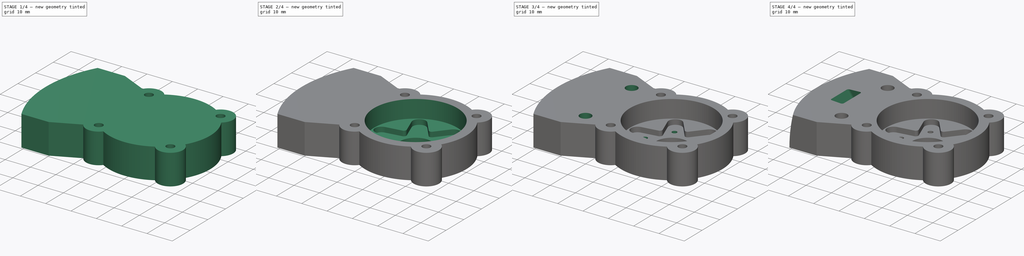
[diagram: build sequence overview — one tinted view per stage of 4, left to right]
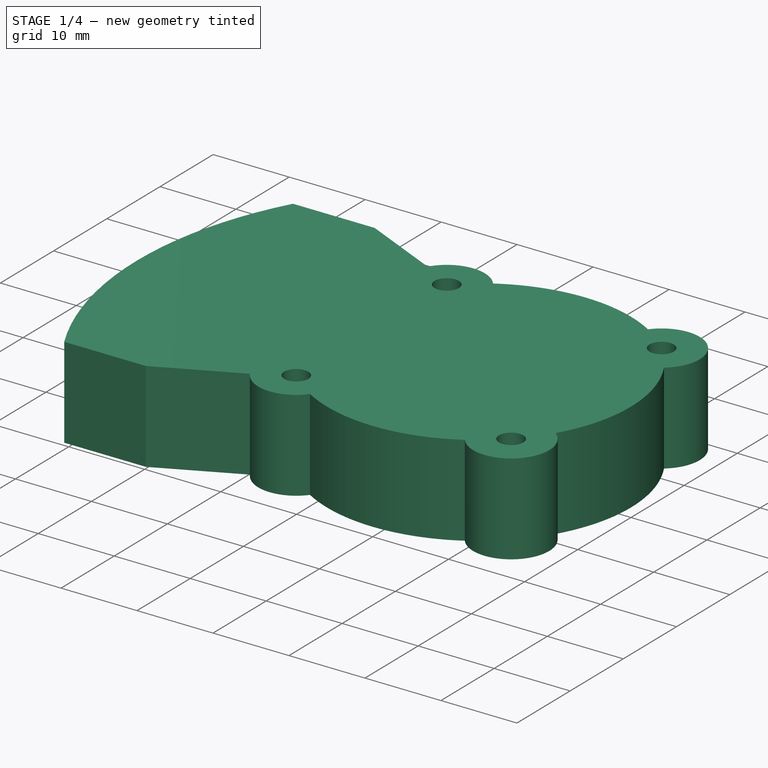
[diagram: stage 1 of 4 — iso view after this stage's code; geometry added in this stage tinted green]
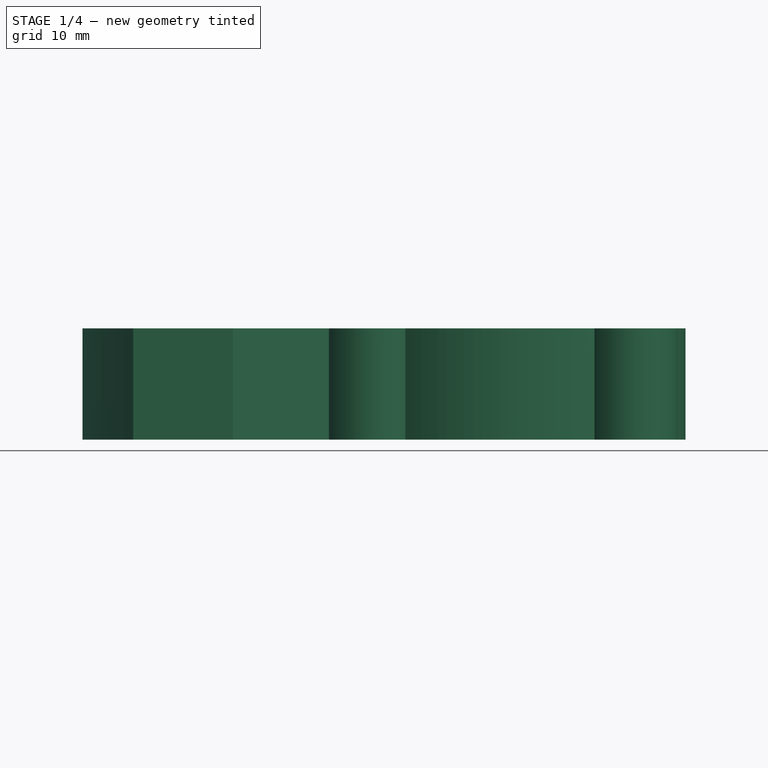
[diagram: stage 1 of 4 — front view after this stage's code; geometry added in this stage tinted green]
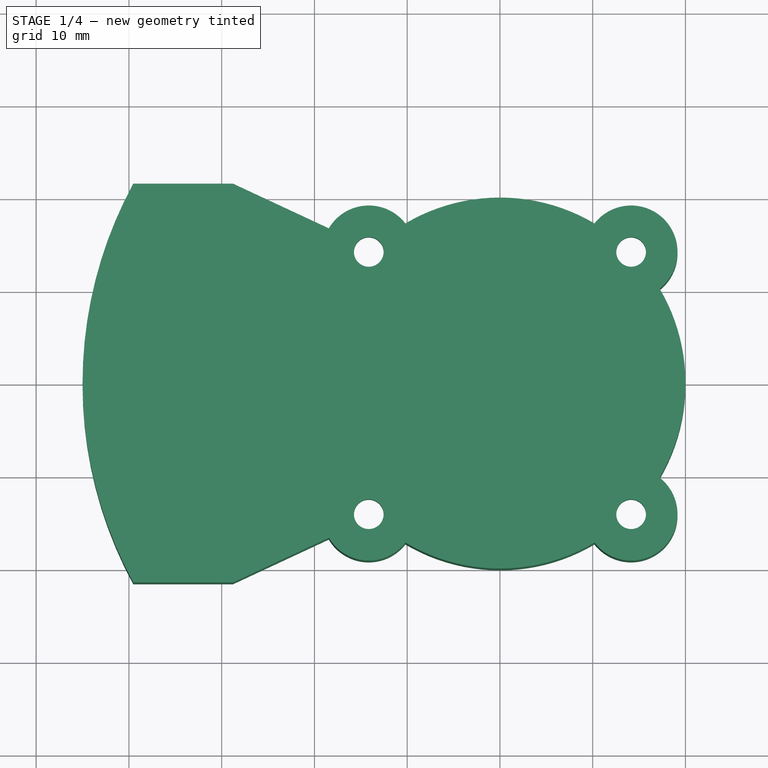
[diagram: stage 1 of 4 — top view after this stage's code; geometry added in this stage tinted green]
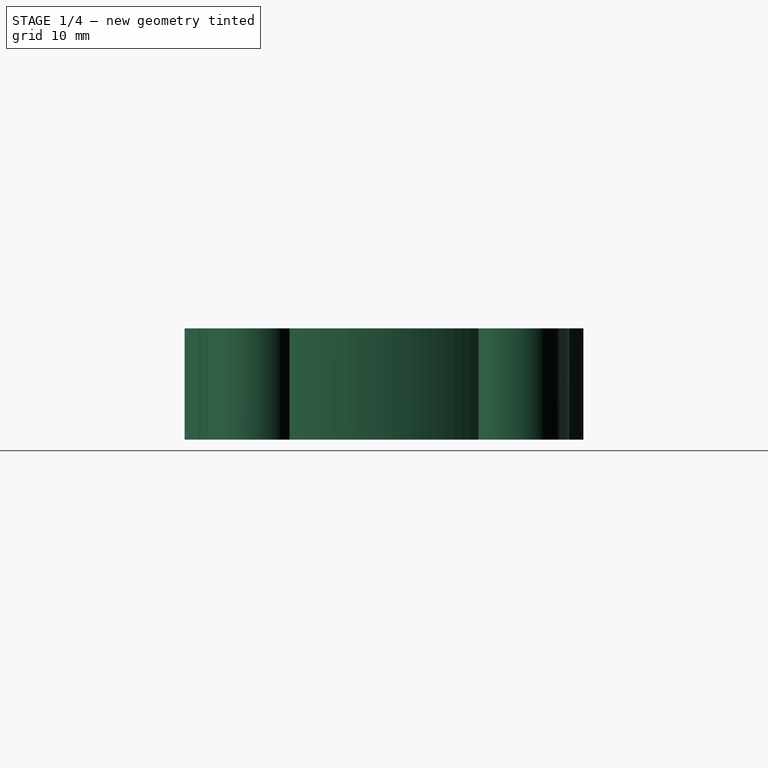
[diagram: stage 1 of 4 — right view after this stage's code; geometry added in this stage tinted green]
FCSTD DOCUMENT  (FreeCAD 1.0R38806 (Git))
Label: Shoulder_Joint_Servohorn_Cap
License: All rights reserved
LicenseURL: https://en.wikipedia.org/wiki/All_rights_reserved
objects: Sketcher::SketchObject×13, PartDesign::Pocket×9, PartDesign::Pad×1, PartDesign::SubtractiveLoft×1, PartDesign::Groove×1, PartDesign::Chamfer×1, PartDesign::Body×1
note: 66 computed .brp shape members not serialized (recipe doc carries the construction recipe); baked Part::Feature solids carry a one-line shape summary decoded from their .brp

FEATURE [Sketcher::SketchObject] Sketch  label="sk_base"
  ArcFitTolerance = 1e-06
  AttachmentSupport = -> [XY_Plane]
  FullyConstrained = true
  MakeInternals = false
  MapMode = 5
  sketch-geometry (17):
    g0: ArcOfCircle CenterX=0 CenterY=0 CenterZ=0 NormalX=0 NormalY=0 NormalZ=1 AngleXU=0 Radius=20 StartAngle=1.03605 EndAngle=2.10554
    g1: Circle [constr] CenterX=0 CenterY=0 CenterZ=0 NormalX=0 NormalY=0 NormalZ=1 AngleXU=0 Radius=20
    g2: LineSegment [constr] StartX=-14.1421 StartY=14.1421 StartZ=0 EndX=-14.1421 EndY=-14.1421 EndZ=0
    g3: LineSegment [constr] StartX=-14.1421 StartY=-14.1421 StartZ=0 EndX=14.1421 EndY=-14.1421 EndZ=0
    g4: LineSegment [constr] StartX=14.1421 StartY=-14.1421 StartZ=0 EndX=14.1421 EndY=14.1421 EndZ=0
    g5: LineSegment [constr] StartX=14.1421 StartY=14.1421 StartZ=0 EndX=-14.1421 EndY=14.1421 EndZ=0
    g6: ArcOfCircle CenterX=14.1421 CenterY=14.1421 CenterZ=0 NormalX=0 NormalY=0 NormalZ=1 AngleXU=0 Radius=5 StartAngle=5.37246 EndAngle=8.76471
    g7: ArcOfCircle CenterX=14.1421 CenterY=-14.1421 CenterZ=0 NormalX=0 NormalY=0 NormalZ=1 AngleXU=0 Radius=5 StartAngle=3.80166 EndAngle=7.19391
    g8: ArcOfCircle CenterX=-14.1421 CenterY=-14.1421 CenterZ=0 NormalX=0 NormalY=0 NormalZ=1 AngleXU=0 Radius=5 StartAngle=3.67439 EndAngle=5.62311
    g9: ArcOfCircle CenterX=-14.1421 CenterY=14.1421 CenterZ=0 NormalX=0 NormalY=0 NormalZ=1 AngleXU=0 Radius=5 StartAngle=0.66007 EndAngle=2.6088
    g10: ArcOfCircle CenterX=0 CenterY=2.08e-14 CenterZ=0 NormalX=0 NormalY=0 NormalZ=1 AngleXU=0 Radius=20 StartAngle=4.17765 EndAngle=5.24713
    g11: ArcOfCircle CenterX=0 CenterY=2.08e-14 CenterZ=0 NormalX=0 NormalY=0 NormalZ=1 AngleXU=0 Radius=20 StartAngle=5.74844 EndAngle=6.81793
    g12: LineSegment StartX=-28.7816 StartY=21.5 StartZ=0 EndX=-39.5316 EndY=21.5 EndZ=0
    g13: ArcOfCircle CenterX=0 CenterY=2.08e-14 CenterZ=0 NormalX=0 NormalY=0 NormalZ=1 AngleXU=0 Radius=45 StartAngle=2.64347 EndAngle=3.63972
    g14: LineSegment StartX=-39.5316 StartY=-21.5 StartZ=0 EndX=-28.7816 EndY=-21.5 EndZ=0
    g15: LineSegment StartX=-28.7816 StartY=-21.5 StartZ=0 EndX=-18.4491 EndY=-16.6819 EndZ=0
    g16: LineSegment StartX=-28.7816 StartY=21.5 StartZ=0 EndX=-18.4491 EndY=16.6819 EndZ=0
  constraints (51):
    c: Coincident(g0,g-1)
    c: Coincident(g1,g0)
    c: Equal(g1,g0)
    c: Coincident(g2,g3)
    c: Coincident(g3,g4)
    c: Coincident(g4,g5)
    c: Coincident(g5,g2)
    c: Vertical(g2)
    c: Vertical(g4)
    c: Horizontal(g3)
    c: Horizontal(g5)
    c: PointOnObject(g2,g10)
    c: PointOnObject(g3,g10)
    c: Equal(g5,g4)
    c: Coincident(g6,g4)
    c: Coincident(g7,g3)
    c: Coincident(g8,g2)
    c: Coincident(g9,g2)
    c: Coincident(g6,g11)
    c: Coincident(g6,g0)
    c: Equal(g6,g7)
    c: Equal(g6,g9)
    c: Equal(g6,g8)
    c: Radius(g6) = 5  'rad_ear'
    c: Coincident(g0,g9)
    c: Equal(g10,g11)
    c: Coincident(g10,g11)
    c: Radius(g11) = 20  'rad_base'
    c: PointOnObject(g4,g1)
    c: Horizontal(g12)
    c: Horizontal(g14)
    c: Equal(g14,g12)
    c: DistanceX(g12,g12) = 10.75  'length_brace'
    c: Coincident(g15,g14)
    c: Coincident(g16,g12)
    c: Distance(g14,g12) = 43  'width_brace'
    c: Coincident(g12,g13)
    c: Coincident(g14,g13)
    c: Radius(g13) = 45  'rad_brace'
    c: Angle(g12,g16) = 2.70526  'angle_brace'
    c: Coincident(g8,g15)
    c: Coincident(g7,g11)
    c: Coincident(g7,g10)
    c: Coincident(g8,g10)
    c: Coincident(g10,g13)
    c: Coincident(g9,g16)
    c: Equal(g1,g11)
    c: PointOnObject(g10,g-2)
    c: Equal(g15,g16)
    c: Vertical(g12,g13)
    c: Vertical(g9,g8)
FEATURE [PartDesign::Pad] Pad  label="pad_base"
  Direction = (0,0,1)
  Length = 12
  Length2 = 10
  Profile = -> Sketch
  ReferenceAxis = -> Sketch [N_Axis]
  Refine = true
  Suppressed = false
  Type = 0
FEATURE [Sketcher::SketchObject] Sketch001  label="sk_screwholes_mount"
  ArcFitTolerance = 1e-06
  AttachmentSupport = -> [XY_Plane]
  ExternalGeometry = -> [Sketch]
  FullyConstrained = true
  MakeInternals = false
  MapMode = 5
  sketch-geometry (4):
    g0: Circle CenterX=-14.1421 CenterY=14.1421 CenterZ=0 NormalX=0 NormalY=0 NormalZ=1 AngleXU=0 Radius=1.6
    g1: Circle CenterX=14.1421 CenterY=14.1421 CenterZ=0 NormalX=0 NormalY=0 NormalZ=1 AngleXU=0 Radius=1.6
    g2: Circle CenterX=14.1421 CenterY=-14.1421 CenterZ=0 NormalX=0 NormalY=0 NormalZ=1 AngleXU=0 Radius=1.6
    g3: Circle CenterX=-14.1421 CenterY=-14.1421 CenterZ=0 NormalX=0 NormalY=0 NormalZ=1 AngleXU=0 Radius=1.6
  constraints (8):
    c: Coincident(g0,g-3)
    c: Coincident(g1,g-4)
    c: Coincident(g2,g-5)
    c: Coincident(g3,g-6)
    c: Equal(g1,g0)
    c: Equal(g1,g3)
    c: Equal(g1,g2)
    c: Radius(g1) = 1.6  'rad_screwhole'
FEATURE [PartDesign::Pocket] Pocket  label="pocket_screwholes_mount"
  BaseFeature = -> Pad
  Direction = (0,0,-1)
  Length = 5
  Length2 = 5
  Profile = -> Sketch001
  ReferenceAxis = -> Sketch001 [N_Axis]
  Refine = true
  Reversed = true
  Suppressed = false
  Type = 1
FEATURE [Sketcher::SketchObject] Sketch002  label="sk_accesshole"
  ArcFitTolerance = 1e-06
  AttachmentOffset = pos=(0,0,12) rot=(0,0,1;0rad)
  AttachmentSupport = -> [XY_Plane]
  FullyConstrained = true
  MakeInternals = false
  MapMode = 5
  Placement = pos=(0,0,12) rot=(0,0,1;0rad)
  expr: .AttachmentOffset.Base.z = <<pad_base>>.Length
  sketch-geometry (1):
    g0: Circle CenterX=0 CenterY=0 CenterZ=0 NormalX=0 NormalY=0 NormalZ=1 AngleXU=0 Radius=16.5
  constraints (2):
    c: Coincident(g0,g-1)
    c: Radius(g0) = 16.5  'rad_hole'
FEATURE [Sketcher::SketchObject] Sketch003  label="sk_servohole"
  ArcFitTolerance = 1e-06
  AttachmentSupport = -> [XY_Plane]
  FullyConstrained = true
  MakeInternals = false
  MapMode = 5
  sketch-geometry (1):
    g0: Circle CenterX=0 CenterY=0 CenterZ=0 NormalX=0 NormalY=0 NormalZ=1 AngleXU=0 Radius=6.15
  constraints (2):
    c: Coincident(g0,g-1)
    c: Radius(g0) = 6.15  'rad_servo'
FEATURE [Sketcher::SketchObject] Sketch004  label="sk_servohorn"
  ArcFitTolerance = 1e-06
  AttachmentOffset = pos=(0,0,5) rot=(0,0,1;0rad)
  AttachmentSupport = -> [XY_Plane]
  FullyConstrained = true
  MakeInternals = false
  MapMode = 5
  Placement = pos=(0,0,5) rot=(0,0,1;0rad)
  expr: .AttachmentOffset.Base.z = <<pad_base>>.Length - <<pocket_accesshole>>.Length
  sketch-geometry (44):
    g0: LineSegment [constr] StartX=6.49519 StartY=-3.75 StartZ=0 EndX=6.49519 EndY=3.75 EndZ=0
    g1: LineSegment [constr] StartX=6.49519 StartY=3.75 StartZ=0 EndX=-9e-16 EndY=7.5 EndZ=0
    g2: LineSegment [constr] StartX=-9e-16 StartY=7.5 StartZ=0 EndX=-6.49519 EndY=3.75 EndZ=0
    g3: LineSegment [constr] StartX=-6.49519 StartY=3.75 StartZ=0 EndX=-6.49519 EndY=-3.75 EndZ=0
    g4: LineSegment [constr] StartX=-6.49519 StartY=-3.75 StartZ=0 EndX=0 EndY=-7.5 EndZ=0
    g5: LineSegment [constr] StartX=0 StartY=-7.5 StartZ=0 EndX=6.49519 EndY=-3.75 EndZ=0
    g6: Circle [constr] CenterX=0 CenterY=0 CenterZ=0 NormalX=0 NormalY=0 NormalZ=1 AngleXU=0 Radius=7.5
    g7: LineSegment [constr] StartX=6.75 StartY=11.6913 StartZ=0 EndX=-6.75 EndY=11.6913 EndZ=0
    g8: LineSegment [constr] StartX=-6.75 StartY=11.6913 StartZ=0 EndX=-13.5 EndY=0 EndZ=0
    g9: LineSegment [constr] StartX=-13.5 StartY=0 StartZ=0 EndX=-6.75 EndY=-11.6913 EndZ=0
    g10: LineSegment [constr] StartX=-6.75 StartY=-11.6913 StartZ=0 EndX=6.75 EndY=-11.6913 EndZ=0
    g11: LineSegment [constr] StartX=6.75 StartY=-11.6913 StartZ=0 EndX=13.5 EndY=0 EndZ=0
    g12: LineSegment [constr] StartX=13.5 StartY=0 StartZ=0 EndX=6.75 EndY=11.6913 EndZ=0
    g13: Circle [constr] CenterX=0 CenterY=0 CenterZ=0 NormalX=0 NormalY=0 NormalZ=1 AngleXU=0 Radius=13.5
    g14: ArcOfCircle CenterX=6.75 CenterY=11.6913 CenterZ=0 NormalX=0 NormalY=0 NormalZ=1 AngleXU=0 Radius=2.6 StartAngle=5.91774 EndAngle=8.74303
    g15: ArcOfCircle CenterX=13.5 CenterY=0 CenterZ=0 NormalX=0 NormalY=0 NormalZ=1 AngleXU=0 Radius=2.6 StartAngle=4.87054 EndAngle=7.69583
    g16: ArcOfCircle CenterX=6.75 CenterY=-11.6913 CenterZ=0 NormalX=0 NormalY=0 NormalZ=1 AngleXU=0 Radius=2.6 StartAngle=3.82334 EndAngle=6.64863
    g17: ArcOfCircle CenterX=-6.75 CenterY=-11.6913 CenterZ=0 NormalX=0 NormalY=0 NormalZ=1 AngleXU=0 Radius=2.6 StartAngle=2.77614 EndAngle=5.60144
    g18: ArcOfCircle CenterX=-13.5 CenterY=0 CenterZ=0 NormalX=0 NormalY=0 NormalZ=1 AngleXU=0 Radius=2.6 StartAngle=1.72895 EndAngle=4.55424
    g19: ArcOfCircle CenterX=-6.75 CenterY=11.6913 CenterZ=0 NormalX=0 NormalY=0 NormalZ=1 AngleXU=0 Radius=2.6 StartAngle=0.681749 EndAngle=3.50704
    g20: LineSegment StartX=4.73117 StartY=13.3297 StartZ=0 EndX=0.776472 EndY=8.45677 EndZ=0
    g21: LineSegment StartX=-0.776472 StartY=8.45677 StartZ=0 EndX=-4.73117 EndY=13.3297 EndZ=0
    g22: LineSegment StartX=-9.17831 StartY=10.7622 StartZ=0 EndX=-6.93554 EndY=4.90083 EndZ=0
    g23: LineSegment StartX=-7.71201 StartY=3.55594 StartZ=0 EndX=-13.9095 EndY=2.56755 EndZ=0
    g24: LineSegment StartX=-13.9095 StartY=-2.56755 StartZ=0 EndX=-7.71201 EndY=-3.55594 EndZ=0
    g25: LineSegment StartX=-6.93554 StartY=-4.90083 StartZ=0 EndX=-9.17831 EndY=-10.7622 EndZ=0
    g26: LineSegment StartX=-0.776472 StartY=-8.45677 StartZ=0 EndX=-4.73117 EndY=-13.3297 EndZ=0
    g27: LineSegment StartX=0.776472 StartY=-8.45677 StartZ=0 EndX=4.73117 EndY=-13.3297 EndZ=0
    g28: LineSegment StartX=9.17831 StartY=-10.7622 StartZ=0 EndX=6.93554 EndY=-4.90083 EndZ=0
    g29: LineSegment StartX=7.71201 StartY=-3.55594 StartZ=0 EndX=13.9095 EndY=-2.56755 EndZ=0
    g30: LineSegment StartX=13.9095 StartY=2.56755 StartZ=0 EndX=7.71201 EndY=3.55594 EndZ=0
    g31: LineSegment StartX=6.93554 StartY=4.90083 StartZ=0 EndX=9.17831 EndY=10.7622 EndZ=0
    g32: ArcOfCircle CenterX=-7.8695 CenterY=-4.54346 CenterZ=0 NormalX=0 NormalY=0 NormalZ=1 AngleXU=0 Radius=1 StartAngle=5.91774 EndAngle=7.69583
    g33: GeomPoint [constr] X=-6.49519 Y=-3.75 Z=0
    g34: ArcOfCircle CenterX=-1e-16 CenterY=-9.08692 CenterZ=0 NormalX=0 NormalY=0 NormalZ=1 AngleXU=0 Radius=1 StartAngle=0.681749 EndAngle=2.45984
    g35: GeomPoint [constr] X=0 Y=-7.5 Z=0
    g36: ArcOfCircle CenterX=7.8695 CenterY=-4.54346 CenterZ=0 NormalX=0 NormalY=0 NormalZ=1 AngleXU=0 Radius=1 StartAngle=1.72895 EndAngle=3.50704
    g37: GeomPoint [constr] X=6.49519 Y=-3.75 Z=0
    g38: ArcOfCircle CenterX=7.8695 CenterY=4.54346 CenterZ=0 NormalX=0 NormalY=0 NormalZ=1 AngleXU=0 Radius=1 StartAngle=2.77614 EndAngle=4.55424
    g39: GeomPoint [constr] X=6.49519 Y=3.75 Z=0
    g40: ArcOfCircle CenterX=2.2e-15 CenterY=9.08692 CenterZ=0 NormalX=0 NormalY=0 NormalZ=1 AngleXU=0 Radius=1 StartAngle=3.82334 EndAngle=5.60144
    g41: GeomPoint [constr] X=-9e-16 Y=7.5 Z=0
    g42: ArcOfCircle CenterX=-7.8695 CenterY=4.54346 CenterZ=0 NormalX=0 NormalY=0 NormalZ=1 AngleXU=0 Radius=1 StartAngle=4.87054 EndAngle=6.64863
    g43: GeomPoint [constr] X=-6.49519 Y=3.75 Z=0
  constraints (92):
    c: Coincident(g0,g1)
    c: Coincident(g1,g2)
    c: Coincident(g2,g3)
    c: Coincident(g3,g4)
    c: Coincident(g4,g5)
    c: Coincident(g5,g0)
    c: Equal(g0, g1-g5) x5
    c: PointOnObject(g0,g6)
    c: PointOnObject(g1,g6)
    c: PointOnObject(g2,g6)
    c: PointOnObject(g3,g6)
    c: PointOnObject(g4,g6)
    c: Coincident(g6,g-1)
    c: Coincident(g7,g8)
    c: Coincident(g8,g9)
    c: Coincident(g9,g10)
    c: Coincident(g10,g11)
    c: Coincident(g11,g12)
    c: Coincident(g12,g7)
    c: Equal(g7, g8-g12) x5
    c: PointOnObject(g7,g13)
    c: PointOnObject(g8,g13)
    c: PointOnObject(g9,g13)
    c: PointOnObject(g10,g13)
    c: PointOnObject(g11,g13)
    c: Coincident(g13,g6)
    c: Radius(g6) = 7.5  'rad_inner'
    c: Radius(g13) = 13.5  'rad_outer'
    c: Coincident(g14,g7)
    c: Coincident(g15,g11)
    c: Coincident(g16,g10)
    c: Coincident(g17,g9)
    c: Coincident(g18,g8)
    c: Coincident(g19,g7)
    c: Equal(g14,g19)
    c: Equal(g14,g18)
    c: Equal(g14,g17)
    c: Equal(g14,g16)
    c: Equal(g14,g15)
    c: Radius(g14) = 2.6  'rad_horntip'
    c: Coincident(g41,g1)
    c: Coincident(g43,g2)
    c: Coincident(g33,g3)
    c: Coincident(g35,g4)
    c: Coincident(g37,g0)
    c: Coincident(g39,g0)
    c: Tangent(g14,g20) = -1.5708
    c: Tangent(g14,g31) = -1.5708
    c: Tangent(g15,g30) = -1.5708
    c: Tangent(g15,g29) = -1.5708
    c: Tangent(g16,g28) = -1.5708
    c: Tangent(g16,g27) = -1.5708
    c: Tangent(g17,g26) = 1.5708
    c: Tangent(g17,g25) = -1.5708
    c: Tangent(g18,g24) = -1.5708
    c: Tangent(g18,g23) = -1.5708
    c: Tangent(g19,g22) = -1.5708
    c: Tangent(g19,g21) = -1.5708
    c: PointOnObject(g33,g24)
    c: PointOnObject(g33,g25)
    c: Tangent(g24,g32) = 1.5708
    c: Tangent(g25,g32) = 1.5708
    c: PointOnObject(g35,g26)
    c: PointOnObject(g35,g27)
    c: Tangent(g26,g34) = -1.5708
    c: Tangent(g27,g34) = 1.5708
    c: PointOnObject(g37,g28)
    c: PointOnObject(g37,g29)
    c: Tangent(g28,g36) = 1.5708
    c: Tangent(g29,g36) = 1.5708
    c: PointOnObject(g39,g30)
    c: PointOnObject(g39,g31)
    c: Tangent(g30,g38) = 1.5708
    c: Tangent(g31,g38) = 1.5708
    c: PointOnObject(g41,g20)
    c: PointOnObject(g41,g21)
    c: Tangent(g20,g40) = 1.5708
    c: Tangent(g21,g40) = 1.5708
    c: PointOnObject(g43,g22)
    c: PointOnObject(g43,g23)
    c: Tangent(g22,g42) = 1.5708
    c: Tangent(g23,g42) = 1.5708
    c: Equal(g38,g40)
    c: Equal(g38,g42)
    c: Equal(g38,g32)
    c: Equal(g38,g34)
    c: Equal(g38,g36)
    c: Radius(g38) = 1  'rad_fillet'
    c: PointOnObject(g7,g13)
    c: PointOnObject(g11,g-1)
    c: PointOnObject(g0,g6)
    c: PointOnObject(g4,g-2)
FEATURE [Sketcher::SketchObject] Sketch005  label="sk_screwhole_servohorn"
  ArcFitTolerance = 1e-06
  AttachmentSupport = -> [XY_Plane]
  FullyConstrained = true
  MakeInternals = false
  MapMode = 5
  sketch-geometry (13):
    g0: LineSegment [constr] StartX=5.25 StartY=9.09327 StartZ=0 EndX=-5.25 EndY=9.09327 EndZ=0
    g1: LineSegment [constr] StartX=-5.25 StartY=9.09327 StartZ=0 EndX=-10.5 EndY=0 EndZ=0
    g2: LineSegment [constr] StartX=-10.5 StartY=7e-16 StartZ=0 EndX=-5.25 EndY=-9.09327 EndZ=0
    g3: LineSegment [constr] StartX=-5.25 StartY=-9.09327 StartZ=0 EndX=5.25 EndY=-9.09327 EndZ=0
    g4: LineSegment [constr] StartX=5.25 StartY=-9.09327 StartZ=0 EndX=10.5 EndY=0 EndZ=0
    g5: LineSegment [constr] StartX=10.5 StartY=0 StartZ=0 EndX=5.25 EndY=9.09327 EndZ=0
    g6: Circle [constr] CenterX=0 CenterY=0 CenterZ=0 NormalX=0 NormalY=0 NormalZ=1 AngleXU=0 Radius=10.5
    g7: Circle CenterX=5.25 CenterY=9.09327 CenterZ=0 NormalX=0 NormalY=0 NormalZ=1 AngleXU=0 Radius=0.95
    g8: Circle CenterX=10.5 CenterY=0 CenterZ=0 NormalX=0 NormalY=0 NormalZ=1 AngleXU=0 Radius=0.95
    g9: Circle CenterX=-5.25 CenterY=9.09327 CenterZ=0 NormalX=0 NormalY=0 NormalZ=1 AngleXU=0 Radius=0.95
    g10: Circle CenterX=-10.5 CenterY=7e-16 CenterZ=0 NormalX=0 NormalY=0 NormalZ=1 AngleXU=0 Radius=0.95
    g11: Circle CenterX=-5.25 CenterY=-9.09327 CenterZ=0 NormalX=0 NormalY=0 NormalZ=1 AngleXU=0 Radius=0.95
    g12: Circle CenterX=5.25 CenterY=-9.09327 CenterZ=0 NormalX=0 NormalY=0 NormalZ=1 AngleXU=0 Radius=0.95
  constraints (28):
    c: Coincident(g0,g1)
    c: Coincident(g1,g2)
    c: Coincident(g2,g3)
    c: Coincident(g3,g4)
    c: Coincident(g4,g5)
    c: Coincident(g5,g0)
    c: Equal(g0, g1-g5) x5
    c: PointOnObject(g0,g6)
    c: PointOnObject(g1,g6)
    c: PointOnObject(g2,g6)
    c: PointOnObject(g3,g6)
    c: PointOnObject(g4,g6)
    c: Coincident(g6,g-1)
    c: Radius(g6) = 10.5  'rad_helper'
    c: Coincident(g7,g0)
    c: Coincident(g8,g4)
    c: Coincident(g9,g0)
    c: Coincident(g10,g1)
    c: Coincident(g11,g2)
    c: Coincident(g12,g3)
    c: Equal(g7,g9)
    c: Equal(g7,g10)
    c: Equal(g11,g7)
    c: Equal(g7,g12)
    c: Equal(g8,g7)
    c: Radius(g7) = 0.95  'rad_screwhole'
    c: PointOnObject(g0,g6)
    c: PointOnObject(g4,g-1)
FEATURE [Sketcher::SketchObject] Sketch006  label="sk_screwheads_mount"
  ArcFitTolerance = 1e-06
  AttachmentSupport = -> [XY_Plane]
  ExternalGeometry = -> [Sketch001]
  FullyConstrained = true
  MakeInternals = false
  MapMode = 5
  sketch-geometry (4):
    g0: Circle CenterX=-14.1421 CenterY=14.1421 CenterZ=0 NormalX=0 NormalY=0 NormalZ=1 AngleXU=0 Radius=2.85
    g1: Circle CenterX=14.1421 CenterY=14.1421 CenterZ=0 NormalX=0 NormalY=0 NormalZ=1 AngleXU=0 Radius=2.85
    g2: Circle CenterX=14.1421 CenterY=-14.1421 CenterZ=0 NormalX=0 NormalY=0 NormalZ=1 AngleXU=0 Radius=2.85
    g3: Circle CenterX=-14.1421 CenterY=-14.1421 CenterZ=0 NormalX=0 NormalY=0 NormalZ=1 AngleXU=0 Radius=2.85
  constraints (8):
    c: Coincident(g0,g-3)
    c: Coincident(g1,g-4)
    c: Coincident(g2,g-5)
    c: Coincident(g3,g-6)
    c: Equal(g1,g0)
    c: Equal(g1,g3)
    c: Equal(g1,g2)
    c: Radius(g1) = 2.85  'rad_screwhead'
FEATURE [PartDesign::Pocket] Pocket005  label="pocket_screwheads_mount"
  BaseFeature = -> Pocket
  Direction = (0,0,-1)
  Length = 8
  Length2 = 5
  Profile = -> Sketch006
  ReferenceAxis = -> Sketch006 [N_Axis]
  Refine = true
  Reversed = true
  Suppressed = false
  Type = 0
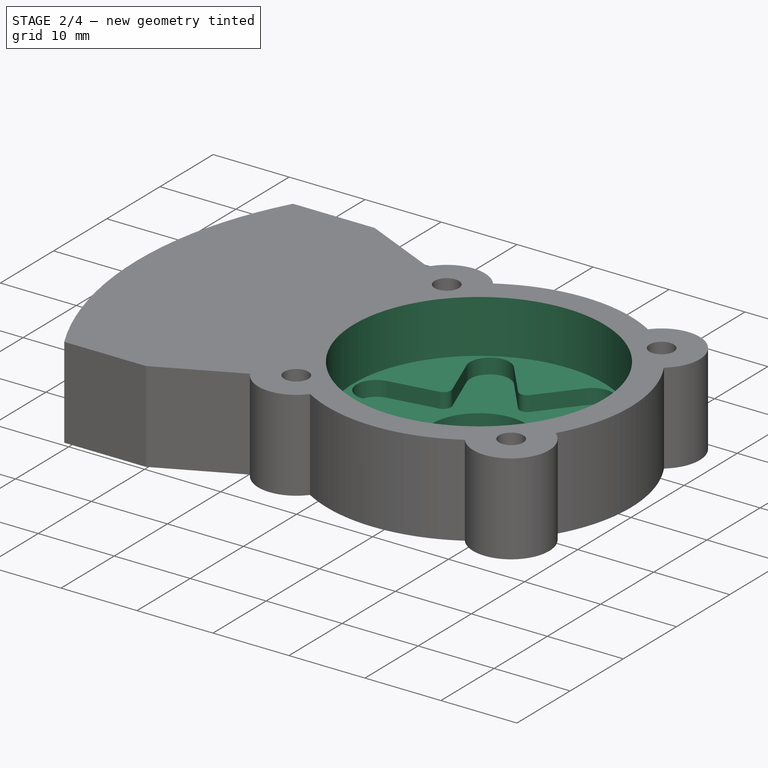
[diagram: stage 2 of 4 — iso view after this stage's code; geometry added in this stage tinted green]
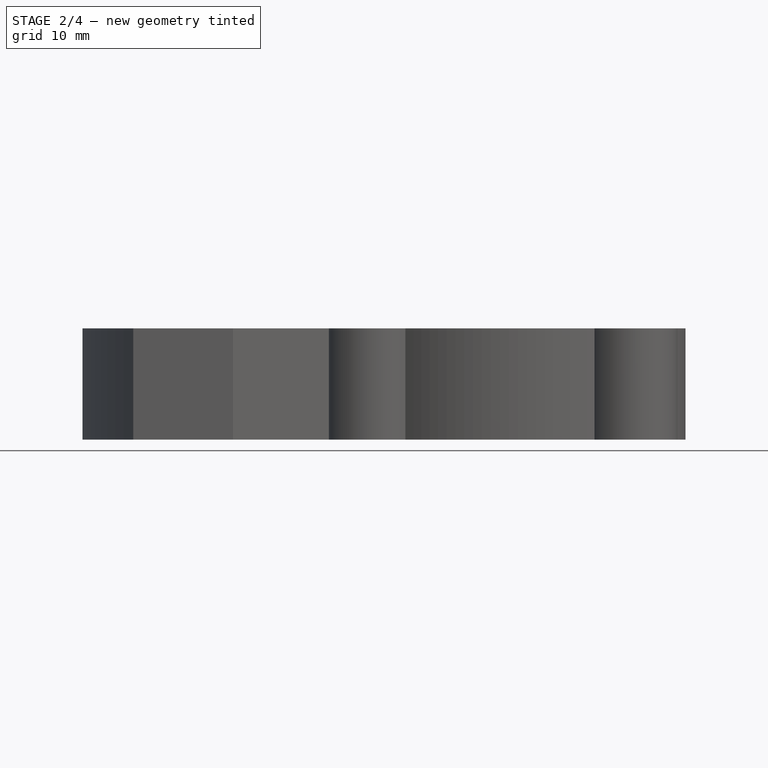
[diagram: stage 2 of 4 — front view after this stage's code; geometry added in this stage tinted green]
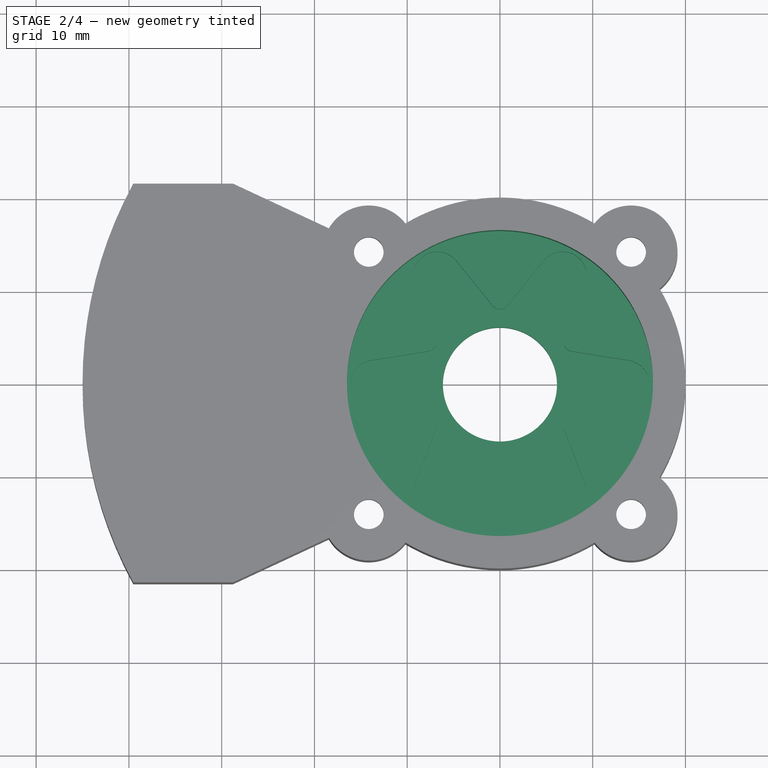
[diagram: stage 2 of 4 — top view after this stage's code; geometry added in this stage tinted green]
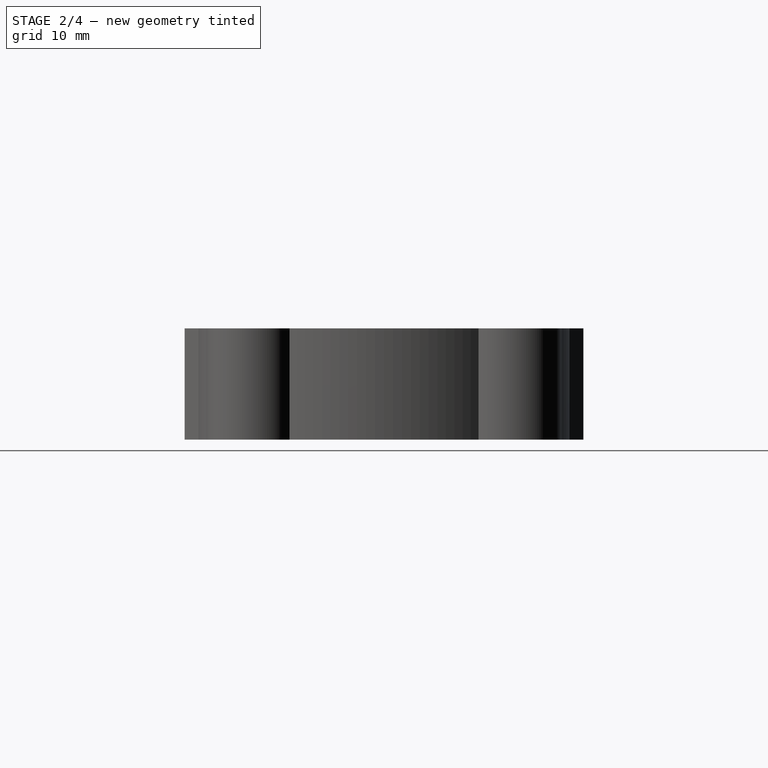
[diagram: stage 2 of 4 — right view after this stage's code; geometry added in this stage tinted green]
FEATURE [PartDesign::Pocket] Pocket001  label="pocket_accesshole"
  BaseFeature = -> Pocket005
  Direction = (0,0,-1)
  Length = 7
  Length2 = 5
  Profile = -> Sketch002
  ReferenceAxis = -> Sketch002 [N_Axis]
  Refine = true
  Suppressed = false
  Type = 0
FEATURE [PartDesign::Pocket] Pocket002  label="pocket_servohole"
  BaseFeature = -> Pocket001
  Direction = (0,0,-1)
  Length = 5
  Length2 = 5
  Profile = -> Sketch003
  ReferenceAxis = -> Sketch003 [N_Axis]
  Refine = true
  Reversed = true
  Suppressed = false
  Type = 1
FEATURE [PartDesign::Pocket] Pocket003  label="pocket_servohorn"
  BaseFeature = -> Pocket002
  Direction = (0,0,-1)
  Length = 2
  Length2 = 5
  Profile = -> Sketch004
  ReferenceAxis = -> Sketch004 [N_Axis]
  Refine = true
  Suppressed = false
  Type = 0
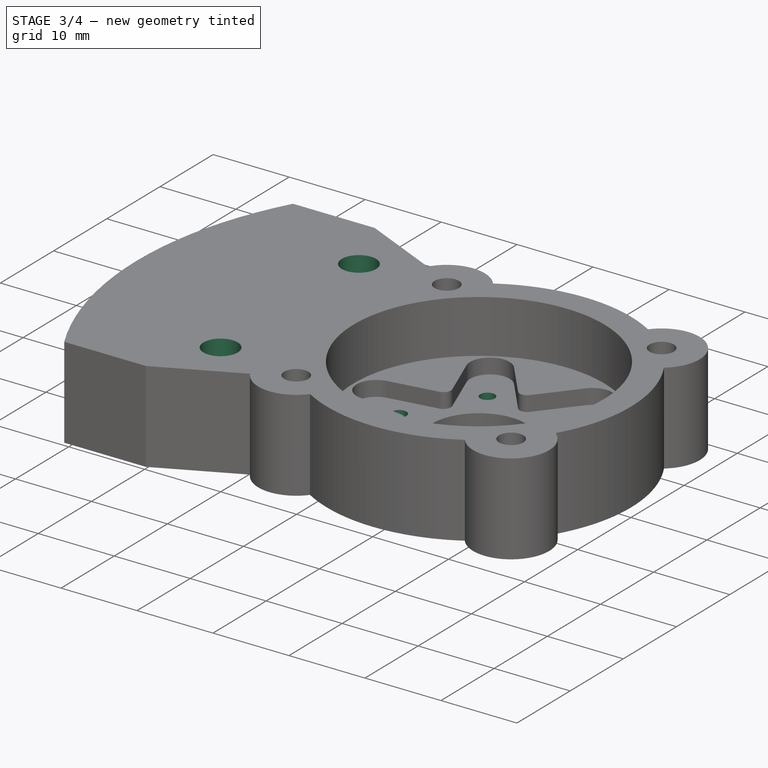
[diagram: stage 3 of 4 — iso view after this stage's code; geometry added in this stage tinted green]
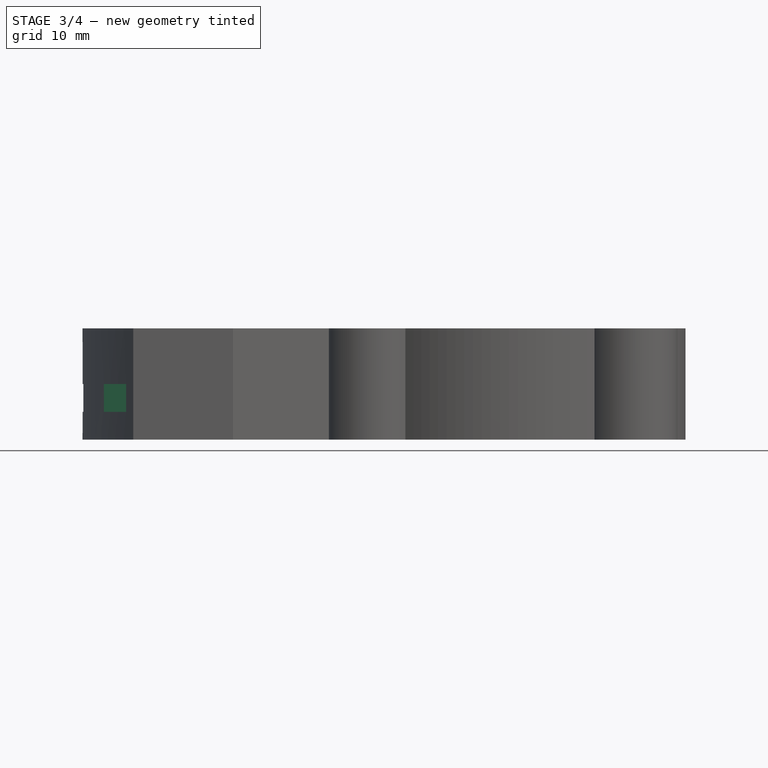
[diagram: stage 3 of 4 — front view after this stage's code; geometry added in this stage tinted green]
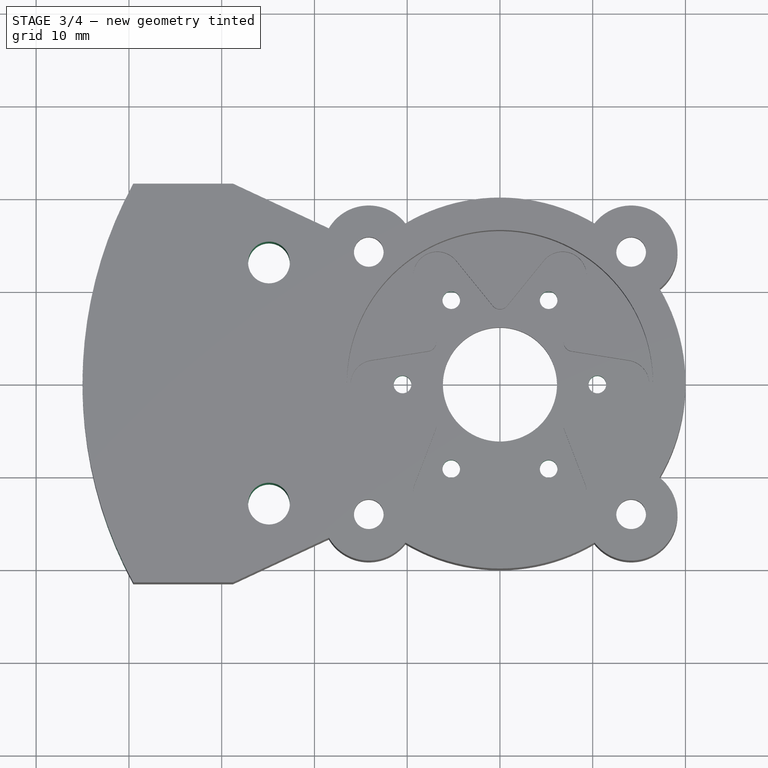
[diagram: stage 3 of 4 — top view after this stage's code; geometry added in this stage tinted green]
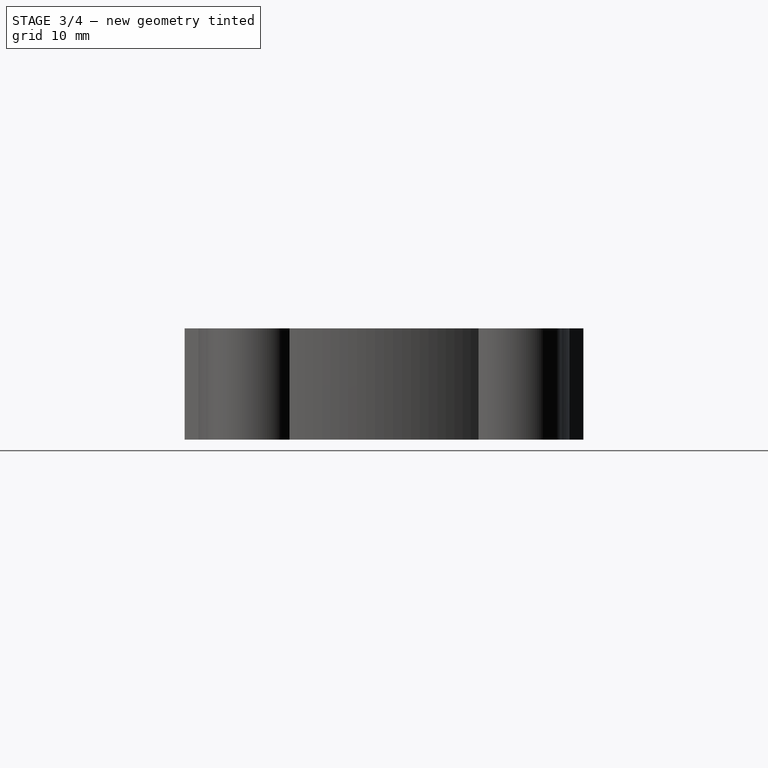
[diagram: stage 3 of 4 — right view after this stage's code; geometry added in this stage tinted green]
FEATURE [PartDesign::Pocket] Pocket004  label="pocket_screwhole_servohorn"
  BaseFeature = -> Pocket003
  Direction = (0,0,-1)
  Length = 5
  Length2 = 5
  Profile = -> Sketch005
  ReferenceAxis = -> Sketch005 [N_Axis]
  Refine = true
  Reversed = true
  Suppressed = false
  Type = 1
FEATURE [Sketcher::SketchObject] Sketch007  label="sk_fancy_hole"
  ArcFitTolerance = 1e-06
  AttachmentSupport = -> [XY_Plane]
  FullyConstrained = true
  MakeInternals = false
  MapMode = 5
  sketch-geometry (2):
    g0: Circle CenterX=-24.9 CenterY=13 CenterZ=0 NormalX=0 NormalY=0 NormalZ=1 AngleXU=0 Radius=2.25
    g1: Circle CenterX=-24.9 CenterY=-13 CenterZ=0 NormalX=0 NormalY=0 NormalZ=1 AngleXU=0 Radius=2.25
  constraints (5):
    c: Equal(g0,g1)
    c: Symmetric(g1,g0,g-1)
    c: Radius(g0) = 2.25  'rad_hole'
    c: Distance(g0,g-2) = 24.9  'position_width'
    c: Distance(g0,g-1) = 13  'position_height'
FEATURE [PartDesign::Pocket] Pocket006  label="pocket_fancy_hole"
  BaseFeature = -> Pocket004
  Direction = (0,0,-1)
  Length = 5
  Length2 = 5
  Profile = -> Sketch007
  ReferenceAxis = -> Sketch007 [N_Axis]
  Refine = true
  Reversed = true
  Suppressed = false
  Type = 1
FEATURE [Sketcher::SketchObject] Sketch008  label="sk_screwholes_brace"
  ArcFitTolerance = 1e-06
  AttachmentSupport = -> [XY_Plane]
  FullyConstrained = true
  MakeInternals = false
  MapMode = 5
  sketch-geometry (5):
    g0: Circle CenterX=-40.5 CenterY=0 CenterZ=0 NormalX=0 NormalY=0 NormalZ=1 AngleXU=0 Radius=1.6
    g1: Circle CenterX=-36.7055 CenterY=17.116 CenterZ=0 NormalX=0 NormalY=0 NormalZ=1 AngleXU=0 Radius=1.6
    g2: Circle CenterX=-36.7055 CenterY=-17.116 CenterZ=0 NormalX=0 NormalY=0 NormalZ=1 AngleXU=0 Radius=1.6
    g3: Circle [constr] CenterX=0 CenterY=0 CenterZ=0 NormalX=0 NormalY=0 NormalZ=1 AngleXU=0 Radius=40.5
    g4: LineSegment [constr] StartX=-36.7055 StartY=17.116 StartZ=0 EndX=0 EndY=0 EndZ=0
  constraints (12):
    c: PointOnObject(g0,g-1)
    c: Equal(g0,g2)
    c: Equal(g0,g1)
    c: Radius(g0) = 1.6  'rad_screwhole'
    c: Coincident(g3,g-1)
    c: Radius(g3) = 40.5  'rad_helper'
    c: PointOnObject(g0,g3)
    c: PointOnObject(g1,g3)
    c: Coincident(g4,g1)
    c: Coincident(g4,g3)
    c: Symmetric(g1,g2,g-1)
    c: Angle(g4,g-1) = 0.436332  'angle_helper'
FEATURE [PartDesign::Pocket] Pocket007  label="pocket_screwholes_brace"
  BaseFeature = -> Pocket006
  Direction = (0,0,-1)
  Length = 8
  Length2 = 5
  Profile = -> Sketch008
  ReferenceAxis = -> Sketch008 [N_Axis]
  Refine = true
  Reversed = true
  Suppressed = false
  Type = 0
FEATURE [Sketcher::SketchObject] Sketch009  label="sk_nutholes_brace"
  ArcFitTolerance = 1e-06
  AttachmentOffset = pos=(0,0,3) rot=(0,0,1;0rad)
  AttachmentSupport = -> [XY_Plane]
  ExternalGeometry = -> [Sketch008]
  FullyConstrained = true
  MakeInternals = false
  MapMode = 5
  Placement = pos=(0,0,3) rot=(0,0,1;0rad)
  sketch-geometry (15):
    g0: LineSegment StartX=-48.3 StartY=2.9 StartZ=0 EndX=-48.3 EndY=-2.9 EndZ=0
    g1: LineSegment StartX=-48.3 StartY=-2.9 StartZ=0 EndX=-37.3 EndY=-2.9 EndZ=0
    g2: LineSegment StartX=-37.3 StartY=-2.9 StartZ=0 EndX=-37.3 EndY=2.9 EndZ=0
    g3: LineSegment StartX=-37.3 StartY=2.9 StartZ=0 EndX=-48.3 EndY=2.9 EndZ=0
    g4: LineSegment StartX=-44.5055 StartY=20.016 StartZ=0 EndX=-44.5055 EndY=14.216 EndZ=0
    g5: LineSegment StartX=-44.5055 StartY=14.216 StartZ=0 EndX=-33.5055 EndY=14.216 EndZ=0
    g6: LineSegment StartX=-33.5055 StartY=14.216 StartZ=0 EndX=-33.5055 EndY=20.016 EndZ=0
    g7: LineSegment StartX=-33.5055 StartY=20.016 StartZ=0 EndX=-44.5055 EndY=20.016 EndZ=0
    g8: LineSegment StartX=-44.5055 StartY=-14.216 StartZ=0 EndX=-44.5055 EndY=-20.016 EndZ=0
    g9: LineSegment StartX=-44.5055 StartY=-20.016 StartZ=0 EndX=-33.5055 EndY=-20.016 EndZ=0
    g10: LineSegment StartX=-33.5055 StartY=-20.016 StartZ=0 EndX=-33.5055 EndY=-14.216 EndZ=0
    g11: LineSegment StartX=-33.5055 StartY=-14.216 StartZ=0 EndX=-44.5055 EndY=-14.216 EndZ=0
    g12: LineSegment [constr] StartX=-40.5 StartY=0 StartZ=0 EndX=-37.3 EndY=0 EndZ=0
    g13: LineSegment [constr] StartX=-36.7055 StartY=17.116 StartZ=0 EndX=-33.5055 EndY=17.116 EndZ=0
    g14: LineSegment [constr] StartX=-36.7055 StartY=-17.116 StartZ=0 EndX=-33.5055 EndY=-17.116 EndZ=0
  constraints (41):
    c: Coincident(g0,g1)
    c: Coincident(g1,g2)
    c: Coincident(g2,g3)
    c: Coincident(g3,g0)
    c: Vertical(g2)
    c: Horizontal(g1)
    c: Horizontal(g3)
    c: DistanceY(g0,g0) = 5.8  'width'
    c: Coincident(g4,g5)
    c: Coincident(g5,g6)
    c: Coincident(g6,g7)
    c: Coincident(g7,g4)
    c: Vertical(g4)
    c: Vertical(g6)
    c: Horizontal(g5)
    c: Horizontal(g7)
    c: Coincident(g8,g9)
    c: Coincident(g9,g10)
    c: Coincident(g10,g11)
    c: Coincident(g11,g8)
    c: Vertical(g8)
    c: Vertical(g10)
    c: Horizontal(g9)
    c: Horizontal(g11)
    c: DistanceX(g1,g1) = 11  'depth'
    c: Symmetric(g0,g0,g-1)
    c: Equal(g8,g0)
    c: Equal(g0,g4)
    c: Coincident(g12,g-5)
    c: Symmetric(g2,g2,g12)
    c: Coincident(g13,g-3)
    c: Horizontal(g13)
    c: Coincident(g14,g-4)
    c: Symmetric(g10,g10,g14)
    c: Horizontal(g14)
    c: Equal(g13,g12)
    c: Equal(g13,g14)
    c: Symmetric(g6,g5,g13)
    c: DistanceX(g13,g13) = 3.2  'distance_center'
    c: Equal(g1,g9)
    c: Equal(g5,g1)
FEATURE [PartDesign::Pocket] Pocket008  label="pocket_nutholes_brace"
  BaseFeature = -> Pocket007
  Direction = (0,0,-1)
  Length = 3
  Length2 = 5
  Profile = -> Sketch009
  ReferenceAxis = -> Sketch009 [N_Axis]
  Refine = true
  Reversed = true
  Suppressed = false
  Type = 0
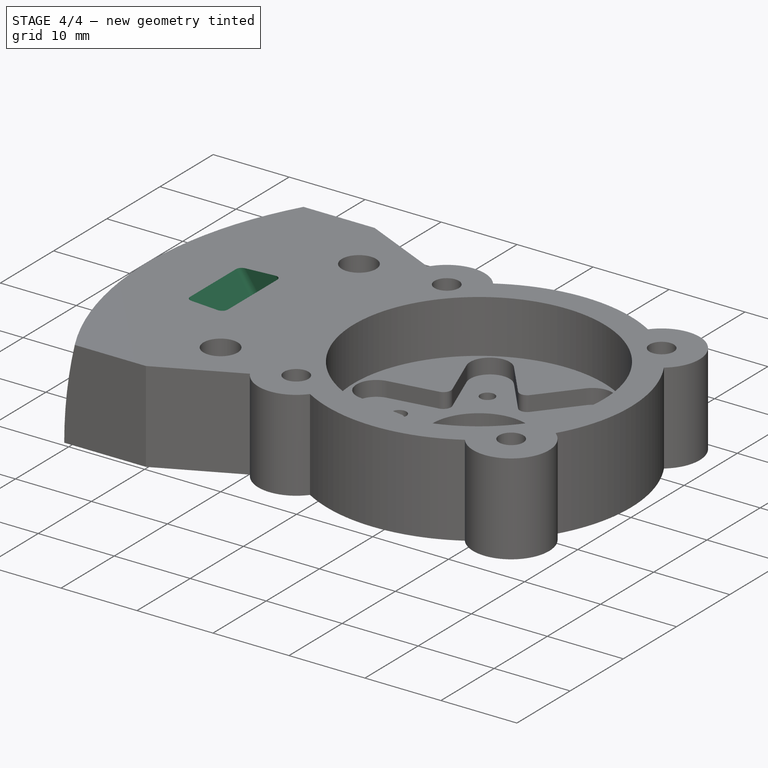
[diagram: stage 4 of 4 — iso view after this stage's code; geometry added in this stage tinted green]
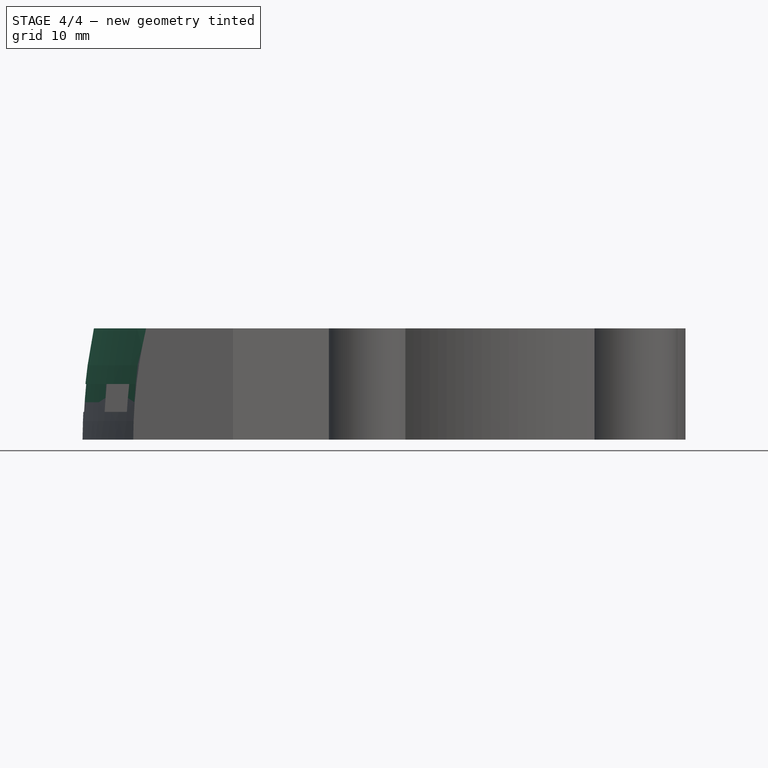
[diagram: stage 4 of 4 — front view after this stage's code; geometry added in this stage tinted green]
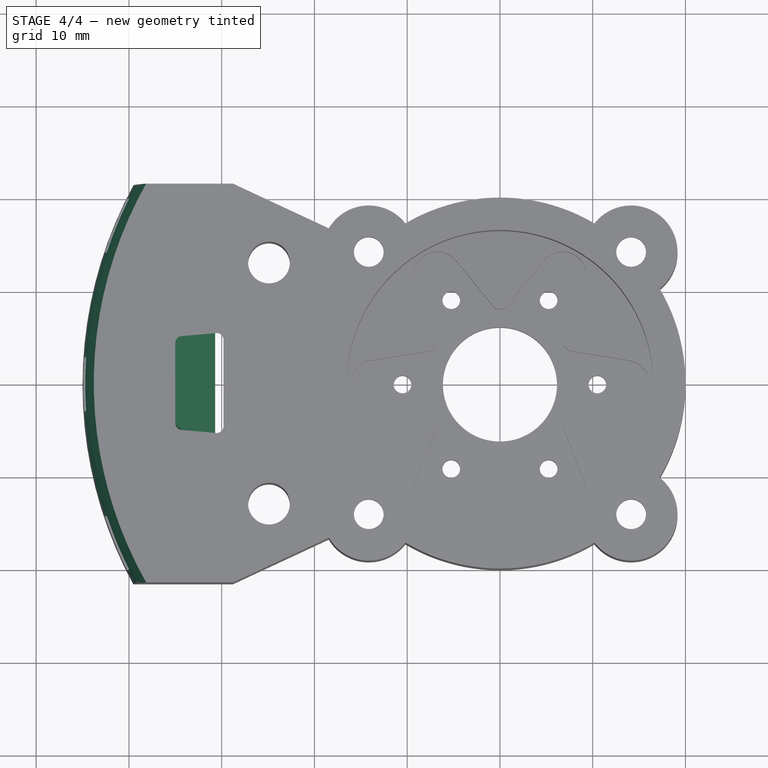
[diagram: stage 4 of 4 — top view after this stage's code; geometry added in this stage tinted green]
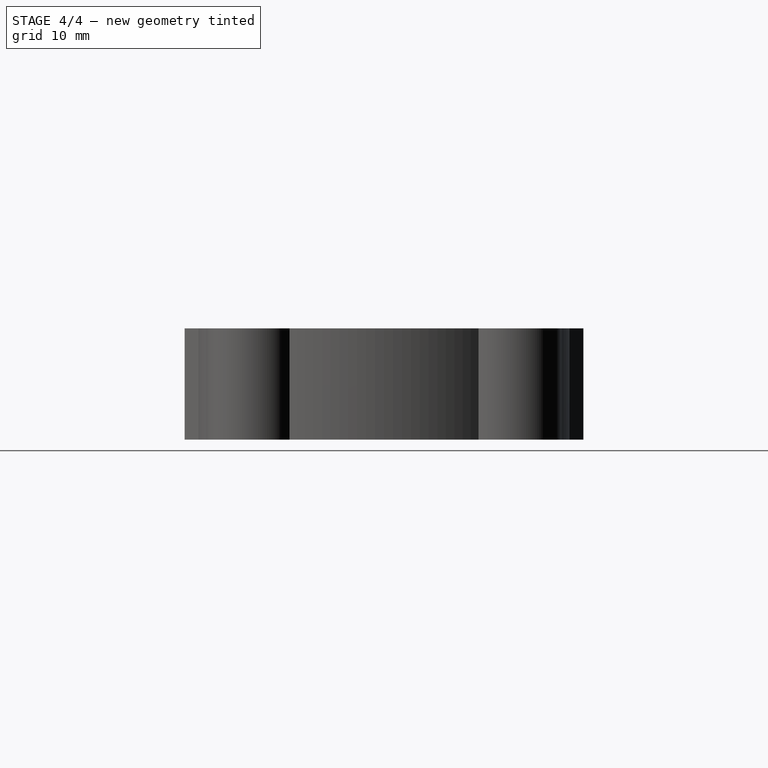
[diagram: stage 4 of 4 — right view after this stage's code; geometry added in this stage tinted green]
FEATURE [Sketcher::SketchObject] Sketch010  label="sk_servocable_hole_bottom"
  ArcFitTolerance = 1e-06
  AttachmentSupport = -> [XY_Plane]
  FullyConstrained = true
  MakeInternals = false
  MapMode = 5
  sketch-geometry (10):
    g0: LineSegment StartX=-30.7 StartY=-7.62873 StartZ=0 EndX=-30.7 EndY=7.62873 EndZ=0
    g1: ArcOfCircle CenterX=-29.7 CenterY=7.62873 CenterZ=0 NormalX=0 NormalY=0 NormalZ=1 AngleXU=0 Radius=1 StartAngle=1.65806 EndAngle=3.14159
    g2: LineSegment StartX=-29.7872 StartY=8.62492 StartZ=0 EndX=-26.5872 EndY=8.90489 EndZ=0
    g3: LineSegment StartX=-25.5 StartY=7.90869 StartZ=0 EndX=-25.5 EndY=-7.90869 EndZ=0
    g4: LineSegment StartX=-26.5872 StartY=-8.90489 StartZ=0 EndX=-29.7872 EndY=-8.62492 EndZ=0
    g5: ArcOfCircle CenterX=-29.7 CenterY=-7.62873 CenterZ=0 NormalX=0 NormalY=0 NormalZ=1 AngleXU=0 Radius=1 StartAngle=3.14159 EndAngle=4.62512
    g6: ArcOfCircle CenterX=-26.5 CenterY=-7.90869 CenterZ=0 NormalX=0 NormalY=0 NormalZ=1 AngleXU=0 Radius=1 StartAngle=4.62512 EndAngle=6.28319
    g7: GeomPoint [constr] X=-25.5 Y=-9 Z=0
    g8: ArcOfCircle CenterX=-26.5 CenterY=7.90869 CenterZ=0 NormalX=0 NormalY=0 NormalZ=1 AngleXU=0 Radius=1 StartAngle=0 EndAngle=1.65806
    g9: GeomPoint [constr] X=-25.5 Y=9 Z=0
  constraints (22):
    c: Tangent(g0,g1) = 1.5708
    c: Tangent(g1,g2) = 1.5708
    c: Tangent(g4,g5) = 1.5708
    c: Tangent(g5,g0) = 1.5708
    c: Symmetric(g5,g1,g-1)
    c: DistanceX(g0,g9) = 5.2  'height'
    c: PointOnObject(g7,g3)
    c: PointOnObject(g7,g4)
    c: Tangent(g3,g6) = 1.5708
    c: Tangent(g4,g6) = 1.5708
    c: PointOnObject(g9,g2)
    c: PointOnObject(g9,g3)
    c: Tangent(g2,g8) = 1.5708
    c: Tangent(g3,g8) = 1.5708
    c: DistanceX(g9,g-1) = 25.5  'position'
    c: Symmetric(g8,g6,g-1)
    c: DistanceY(g7,g9) = 18  'width'
    c: Vertical(g3)
    c: Equal(g8,g1)
    c: Equal(g8,g5)
    c: Radius(g8) = 1  'rad_fillet'
    c: Angle(g2,g3) = 1.48353  'angle'
FEATURE [Sketcher::SketchObject] Sketch011  label="sk_servocable_hole_top"
  ArcFitTolerance = 1e-06
  AttachmentOffset = pos=(0,0,12) rot=(0,0,1;0rad)
  AttachmentSupport = -> [XY_Plane]
  FullyConstrained = true
  MakeInternals = false
  MapMode = 5
  Placement = pos=(0,0,12) rot=(0,0,1;0rad)
  expr: .AttachmentOffset.Base.z = <<pad_base>>.Length
  sketch-geometry (12):
    g0: LineSegment StartX=-35 StartY=4.31275 StartZ=0 EndX=-35 EndY=-4.31275 EndZ=0
    g1: LineSegment StartX=-34.3154 StartY=-5.0599 StartZ=0 EndX=-30.6154 EndY=-5.38361 EndZ=0
    g2: LineSegment StartX=-29.8 StartY=-4.63646 StartZ=0 EndX=-29.8 EndY=4.63646 EndZ=0
    g3: LineSegment StartX=-30.6154 StartY=5.38361 StartZ=0 EndX=-34.3154 EndY=5.0599 EndZ=0
    g4: ArcOfCircle CenterX=-34.25 CenterY=4.31275 CenterZ=0 NormalX=0 NormalY=0 NormalZ=1 AngleXU=0 Radius=0.75 StartAngle=1.65806 EndAngle=3.14159
    g5: GeomPoint [constr] X=-35 Y=5 Z=0
    g6: ArcOfCircle CenterX=-30.55 CenterY=4.63646 CenterZ=0 NormalX=0 NormalY=0 NormalZ=1 AngleXU=0 Radius=0.75 StartAngle=-1.8e-15 EndAngle=1.65806
    g7: GeomPoint [constr] X=-29.8 Y=5.45494 Z=0
    g8: ArcOfCircle CenterX=-30.55 CenterY=-4.63646 CenterZ=0 NormalX=0 NormalY=0 NormalZ=1 AngleXU=0 Radius=0.75 StartAngle=4.62512 EndAngle=6.28319
    g9: GeomPoint [constr] X=-29.8 Y=-5.45494 Z=0
    g10: ArcOfCircle CenterX=-34.25 CenterY=-4.31275 CenterZ=0 NormalX=0 NormalY=0 NormalZ=1 AngleXU=0 Radius=0.75 StartAngle=3.14159 EndAngle=4.62512
    g11: GeomPoint [constr] X=-35 Y=-5 Z=0
  constraints (26):
    c: Vertical(g2)
    c: PointOnObject(g5,g0)
    c: PointOnObject(g5,g3)
    c: Tangent(g0,g4) = -1.5708
    c: Tangent(g3,g4) = -1.5708
    c: PointOnObject(g7,g2)
    c: PointOnObject(g7,g3)
    c: Tangent(g2,g6) = -1.5708
    c: Tangent(g3,g6) = -1.5708
    c: PointOnObject(g9,g1)
    c: PointOnObject(g9,g2)
    c: Tangent(g1,g8) = -1.5708
    c: Tangent(g2,g8) = -1.5708
    c: PointOnObject(g11,g0)
    c: PointOnObject(g11,g1)
    c: Tangent(g0,g10) = -1.5708
    c: Tangent(g1,g10) = -1.5708
    c: Symmetric(g4,g10,g-1)
    c: Symmetric(g6,g8,g-1)
    c: Equal(g6,g4)
    c: Radius(g6) = 0.75  'rad_fillet'
    c: DistanceY(g11,g5) = 10  'width'
    c: Angle(g1,g0) = 1.65806  'angle'
    c: Vertical(g0)
    c: DistanceX(g0,g2) = 5.2  'height'
    c: DistanceX(g5,g-1) = 35  'position'
FEATURE [PartDesign::SubtractiveLoft] SubtractiveLoft  label="subloft_servocable_hole"
  BaseFeature = -> Pocket008
  Closed = false
  Profile = -> Sketch010
  Refine = true
  Ruled = false
  Sections = -> [Sketch011]
  Suppressed = false
FEATURE [Sketcher::SketchObject] Sketch012  label="sk_bevel_brace"
  ArcFitTolerance = 1e-06
  AttachmentSupport = -> [XZ_Plane]
  FullyConstrained = true
  MakeInternals = false
  MapMode = 5
  Placement = pos=(0,0,0) rot=(1,0,0;1.5708rad)
  expr: .Constraints.height = <<pad_base>>.Length
  expr: .Constraints.position_lower = <<sk_base>>.Constraints.rad_brace
  sketch-geometry (3):
    g0: LineSegment StartX=-45 StartY=7.3e-15 StartZ=0 EndX=-45 EndY=12 EndZ=0
    g1: LineSegment StartX=-45 StartY=12 StartZ=0 EndX=-43.7878 EndY=12 EndZ=0
    g2: ArcOfCircle CenterX=15 CenterY=0 CenterZ=0 NormalX=0 NormalY=0 NormalZ=1 AngleXU=0 Radius=60 StartAngle=2.94023 EndAngle=3.14159
  constraints (10):
    c: PointOnObject(g0,g-1)
    c: Vertical(g0)
    c: Coincident(g0,g1)
    c: Horizontal(g1)
    c: Coincident(g2,g1)
    c: Coincident(g2,g0)
    c: DistanceX(g0,g-1) = 45  'position_lower'
    c: DistanceY(g0,g0) = 12  'height'
    c: PointOnObject(g2,g-1)
    c: Radius(g2) = 60  'rad_bevel'
FEATURE [PartDesign::Groove] Groove  label="groove_bevel_brace"
  Angle = 90
  Angle2 = 60
  Axis = (0,2e-16,1)
  Base = (0,0,0)
  BaseFeature = -> SubtractiveLoft
  Midplane = true
  Profile = -> Sketch012
  ReferenceAxis = -> Sketch012 [V_Axis]
  Refine = true
  Suppressed = false
  Type = 0
FEATURE [PartDesign::Chamfer] Chamfer  label="chamfer_screwheads"
  Angle = 45
  Base = -> Groove [Edge157,Edge161,Edge155,Edge153]
  BaseFeature = -> Groove
  ChamferType = 2
  FlipDirection = false
  Refine = true
  Size = 1.2
  Size2 = 1
  SupportTransform = false
  Suppressed = false
  UseAllEdges = false
FEATURE [PartDesign::Body] Body  label="Shoulder_Joint_Servohorn_Cap"
  AllowCompound = false
  Group = -> [Sketch,Pad,Sketch001,Pocket,Sketch002,Sketch006,Pocket005,Pocket001,Sketch003,Pocket002,Sketch004,Pocket003,Sketch005,Pocket004,Sketch007,Pocket006,Sketch008,Pocket007,Sketch009,Pocket008,Sketch010,Sketch011,SubtractiveLoft,Sketch012,Groove,Chamfer]
  Origin = -> Origin
  Tip = -> Chamfer
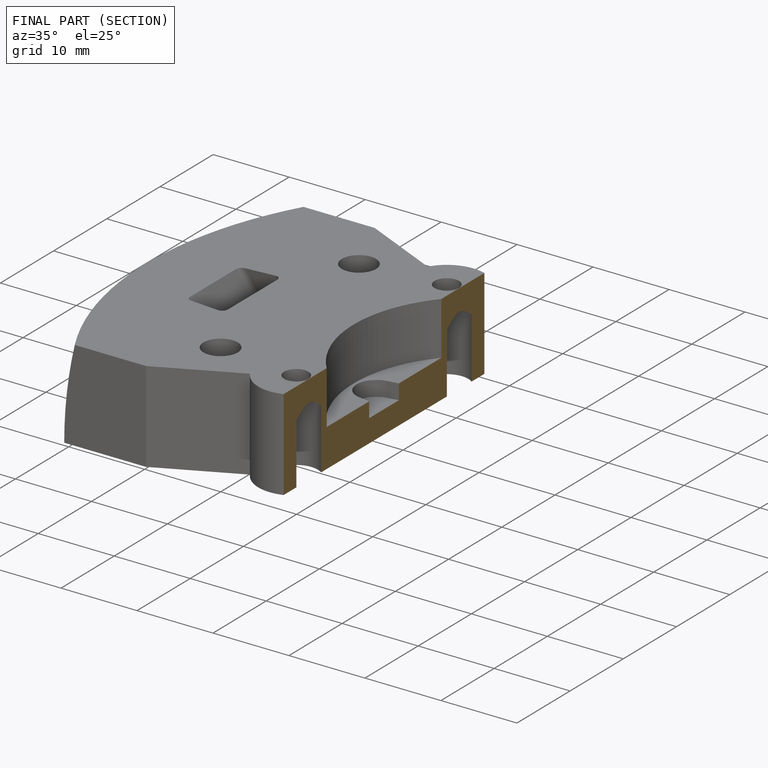
[diagram: finished part — half-section view (interior)]
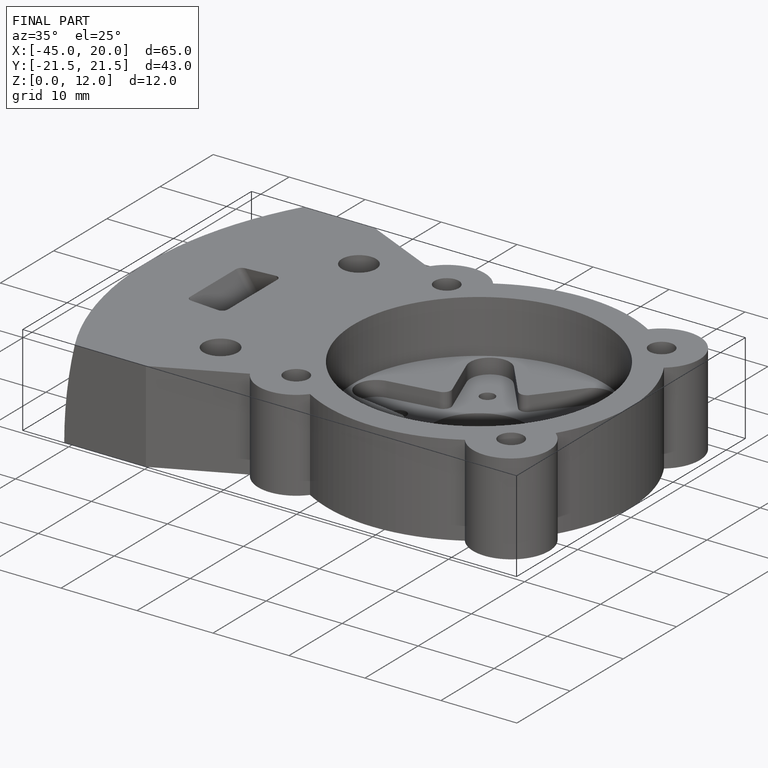
[diagram: finished part — iso view with bounding-box wireframe]
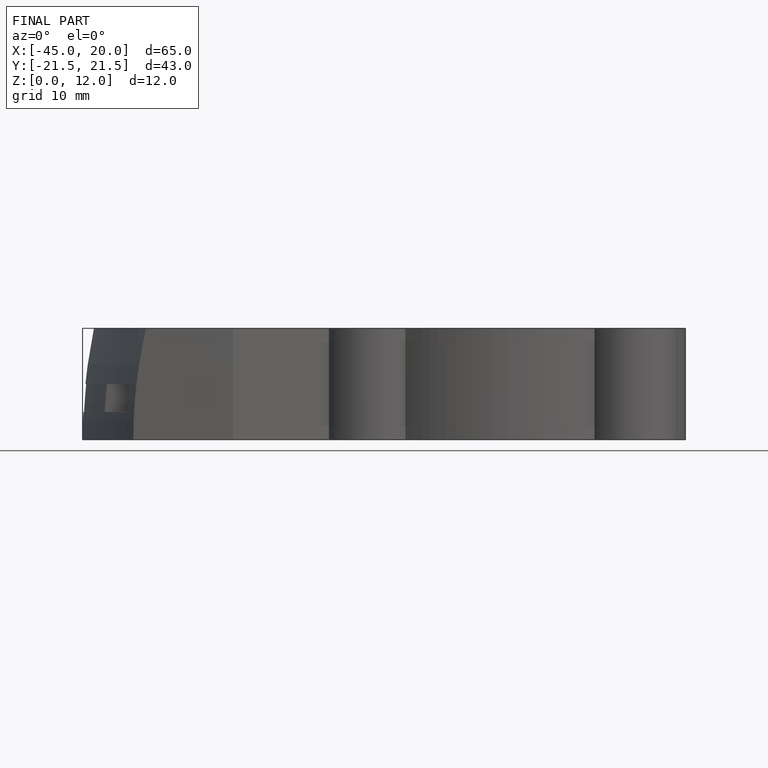
[diagram: finished part — front view with bounding-box wireframe]
